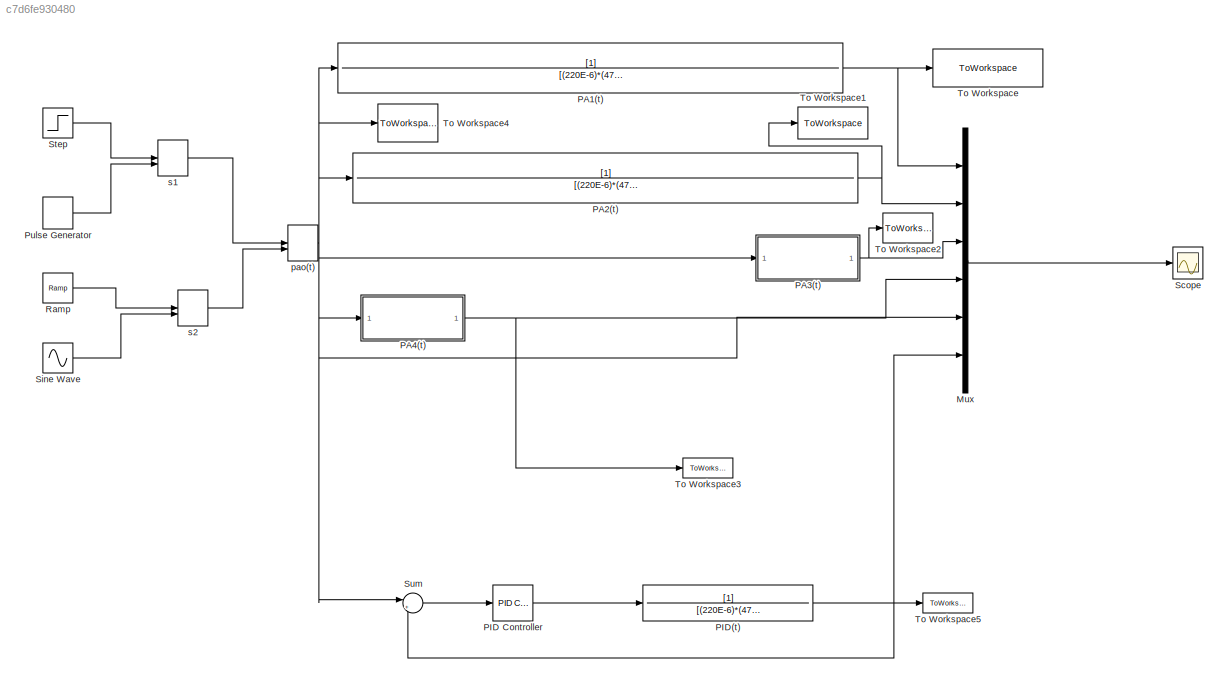
MODEL slx_c7d6fe930480
KIND model
CONFIG AbsTol = auto
CONFIG EnableMultiTasking = off
CONFIG FixedStep = auto
CONFIG MaxStep = 1E-3
CONFIG MinStep = auto
CONFIG RelTol = 1e-3
CONFIG SampleTimeConstraint = Unconstrained
CONFIG SolverName = ode23t
CONFIG StartTime = 0.0
CONFIG StopTime = 10.0
BLOCK [Mux] Mux
  DisplayOption = bar
  Inputs = 6
BLOCK [TransferFcn] PA1(t)
  Denominator = [(220E-6)*(47E-3),(220E-6)*(10E3),1]
BLOCK [TransferFcn] PA2(t)
  Denominator = [(220E-6)*(47E-3),(220E-6)*(10E3),1]
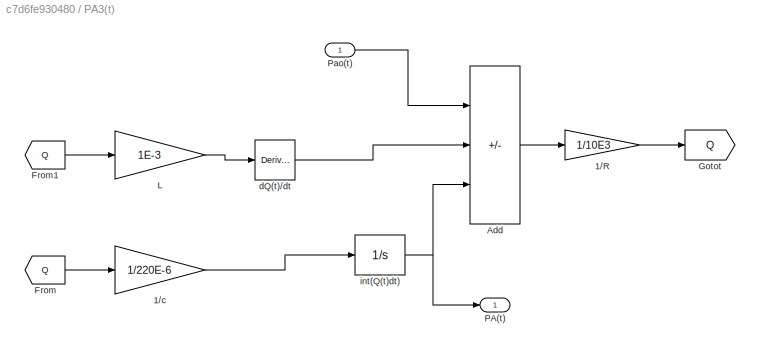
BLOCK [SubSystem] PA3(t)
BLOCK [Gain] PA3(t)/1//R
  Gain = 1/10E3
BLOCK [Gain] PA3(t)/1//c
  Gain = 1/220E-6
BLOCK [Sum] PA3(t)/Add
  IconShape = rectangular
  Inputs = +--
BLOCK [From] PA3(t)/From
  GotoTag = Q
BLOCK [From] PA3(t)/From1
  GotoTag = Q
BLOCK [Goto] PA3(t)/Gotot
  GotoTag = Q
BLOCK [Gain] PA3(t)/L
  Gain = 1E-3
BLOCK [Outport] PA3(t)/PA(t)
BLOCK [Inport] PA3(t)/Pao(t)
BLOCK [Derivative] PA3(t)/dQ(t)//dt
BLOCK [Integrator] PA3(t)/int(Q(t)dt)
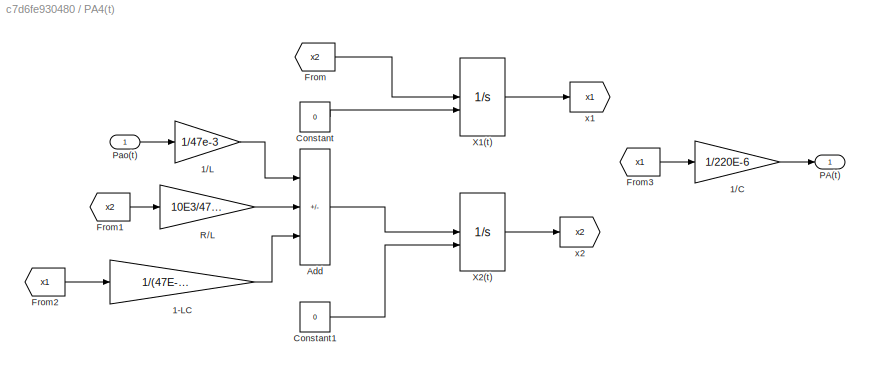
BLOCK [SubSystem] PA4(t)
BLOCK [Gain] PA4(t)/1-LC
  Gain = 1/(47E-3*220E-6)
BLOCK [Gain] PA4(t)/1//C
  Gain = 1/220E-6
BLOCK [Gain] PA4(t)/1//L
  Gain = 1/47e-3
BLOCK [Sum] PA4(t)/Add
  IconShape = rectangular
  Inputs = +--
BLOCK [Constant] PA4(t)/Constant
  Value = 0
BLOCK [Constant] PA4(t)/Constant1
  Value = 0
BLOCK [From] PA4(t)/From
  GotoTag = x2
BLOCK [From] PA4(t)/From1
  GotoTag = x2
BLOCK [From] PA4(t)/From2
  GotoTag = x1
BLOCK [From] PA4(t)/From3
  GotoTag = x1
BLOCK [Outport] PA4(t)/PA(t)
BLOCK [Inport] PA4(t)/Pao(t)
BLOCK [Gain] PA4(t)/R//L
  Gain = 10E3/47E-3
BLOCK [Integrator] PA4(t)/X1(t)
  InitialConditionSource = external
BLOCK [Integrator] PA4(t)/X2(t)
  InitialConditionSource = external
BLOCK [Goto] PA4(t)/x1
  GotoTag = x1
BLOCK [Goto] PA4(t)/x2
  GotoTag = x2
BLOCK [Reference] PID Controller  REF=slpidlib/PID Controller
  LibrarySourceBlock = simulink/Continuous/PID Controller
  SourceBlock = slpidlib/PID Controller
  SourceType = PID 1dof
BLOCK [TransferFcn] PID(t)
  Denominator = [(220E-6)*(47E-3),(220E-6)*(10E3),1]
BLOCK [DiscretePulseGenerator] Pulse Generator
  Period = 10
  PhaseDelay = 1
  PulseType = Time based
  PulseWidth = 10
BLOCK [Reference] Ramp  REF=simulink/Sources/Ramp
  SourceBlock = simulink/Sources/Ramp
  SourceType = Ramp
BLOCK [Scope] Scope
  ActiveDisplayYMaximum = 1.2948993090954706
  ActiveDisplayYMinimum = -0.38022024168578028
  ContainerLayout = {"WindowBounds":[1,1427,1596,677]}
  Floating = off
  GraphicalSettings = {"Style":{"BackgroundColor":[0.12941176470588237,0.12941176470588237,0.12941176470588237],"AxesColor":[0.07058823529411765,0.07058823529411765,0.07058823529411765],"LabelsColor":[0.8509803921568627,0.8509803921568627,0.8509803921568627],"PreserveColors":false,"Visible":[true,true,true,true,true,true],"LineStyle":["-","-","-","-","-","-"],"LineWidth":[1.5,1.5,1.5,1.5,1.5,1.5],"BarWidth":[0.9,0.9,0....<+2514ch>
  MultipleDisplayCache = [{"MaxYLimMag":1.125,"MaxYLimReal":1.2948993090954706,"MinYLimMag":0,"MinYLimReal":-0.38022024168578028,"PlotAsMagnitudePhase":false,"ShowGrid":true,"ShowLegend":true,"Title":"%<SignalLabel>","YLabel":""}]
  NumInputPorts = 1
  ShowLegend = on
  Visible = on
  WasSavedAsWebScope = on
  WindowPosition = [1108.000000,4.000000,491.000000,680.000000,]
BLOCK [Sin] Sine Wave
  Frequency = pi/2
  SampleTime = 0
BLOCK [Step] Step
  Before = 1
  SampleTime = 0
  Time = 0
BLOCK [Sum] Sum
  Inputs = |+-
BLOCK [ToWorkspace] To Workspace
  FixptAsFi = on
  MaxDataPoints = inf
  SampleTime = -1
  VariableName = PA1
BLOCK [ToWorkspace] To Workspace1
  FixptAsFi = on
  MaxDataPoints = inf
  SampleTime = -1
  VariableName = PA2
BLOCK [ToWorkspace] To Workspace2
  FixptAsFi = on
  MaxDataPoints = inf
  SampleTime = -1
  VariableName = PA3
BLOCK [ToWorkspace] To Workspace3
  FixptAsFi = on
  MaxDataPoints = inf
  SampleTime = -1
  VariableName = PA4
BLOCK [ToWorkspace] To Workspace4
  FixptAsFi = on
  MaxDataPoints = inf
  SampleTime = -1
  VariableName = pao
BLOCK [ToWorkspace] To Workspace5
  FixptAsFi = on
  MaxDataPoints = inf
  SampleTime = -1
  VariableName = PID
BLOCK [ManualSwitch] pao(t)
  CurrentSetting = 0
BLOCK [ManualSwitch] s1
  CurrentSetting = 0
BLOCK [ManualSwitch] s2
  CurrentSetting = 0
LINE Mux:1 -> Scope:1
NET PA1(t):1 -> Mux:1, To Workspace:1
NET PA2(t):1 -> Mux:2, To Workspace1:1
LINE PA3(t)/1//R:1 -> PA3(t)/Gotot:1
LINE PA3(t)/1//c:1 -> PA3(t)/int(Q(t)dt):1
LINE PA3(t)/Add:1 -> PA3(t)/1//R:1
LINE PA3(t)/From1:1 -> PA3(t)/L:1
LINE PA3(t)/From:1 -> PA3(t)/1//c:1
LINE PA3(t)/L:1 -> PA3(t)/dQ(t)//dt:1
LINE PA3(t)/Pao(t):1 -> PA3(t)/Add:1
LINE PA3(t)/dQ(t)//dt:1 -> PA3(t)/Add:2
NET PA3(t)/int(Q(t)dt):1 -> PA3(t)/Add:3, PA3(t)/PA(t):1
NET PA3(t):1 -> Mux:3, To Workspace2:1
LINE PA4(t)/1-LC:1 -> PA4(t)/Add:3
LINE PA4(t)/1//C:1 -> PA4(t)/PA(t):1
LINE PA4(t)/1//L:1 -> PA4(t)/Add:1
LINE PA4(t)/Add:1 -> PA4(t)/X2(t):1
LINE PA4(t)/Constant1:1 -> PA4(t)/X2(t):2
LINE PA4(t)/Constant:1 -> PA4(t)/X1(t):2
LINE PA4(t)/From1:1 -> PA4(t)/R//L:1
LINE PA4(t)/From2:1 -> PA4(t)/1-LC:1
LINE PA4(t)/From3:1 -> PA4(t)/1//C:1
LINE PA4(t)/From:1 -> PA4(t)/X1(t):1
LINE PA4(t)/Pao(t):1 -> PA4(t)/1//L:1
LINE PA4(t)/R//L:1 -> PA4(t)/Add:2
LINE PA4(t)/X1(t):1 -> PA4(t)/x1:1
LINE PA4(t)/X2(t):1 -> PA4(t)/x2:1
NET PA4(t):1 -> Mux:4, To Workspace3:1
LINE PID Controller:1 -> PID(t):1
NET PID(t):1 -> Mux:6, Sum:2, To Workspace5:1
LINE Pulse Generator:1 -> s1:2
LINE Ramp:1 -> s2:1
LINE Sine Wave:1 -> s2:2
LINE Step:1 -> s1:1
LINE Sum:1 -> PID Controller:1
NET pao(t):1 -> Mux:5, PA1(t):1, PA2(t):1, PA3(t):1, PA4(t):1, Sum:1, To Workspace4:1
LINE s1:1 -> pao(t):1
LINE s2:1 -> pao(t):2
note: NET lines group one-source signal fan-out (src -> all destinations, sorted); 1:1 wires keep LINE
